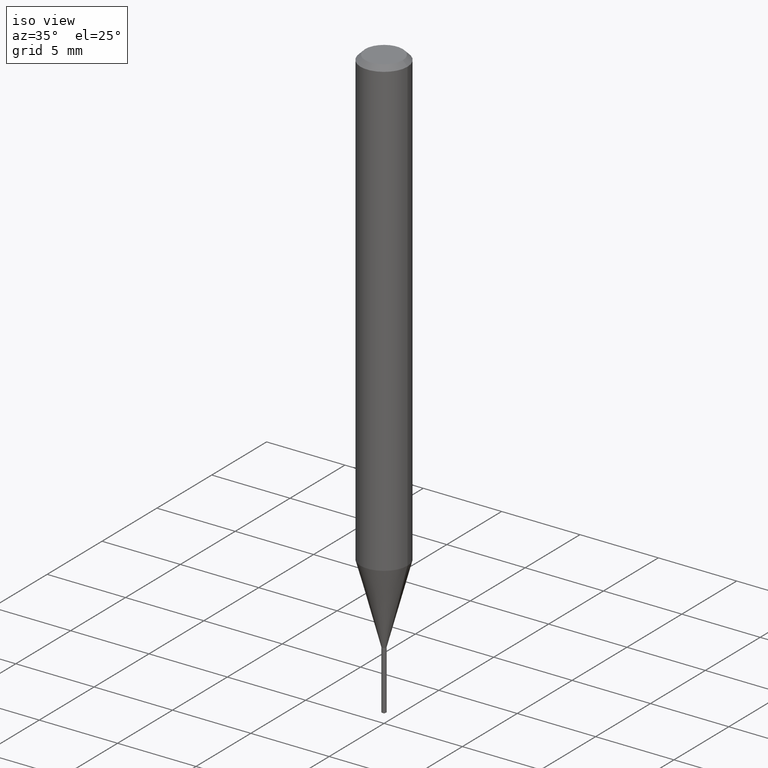
[diagram: clean part render]
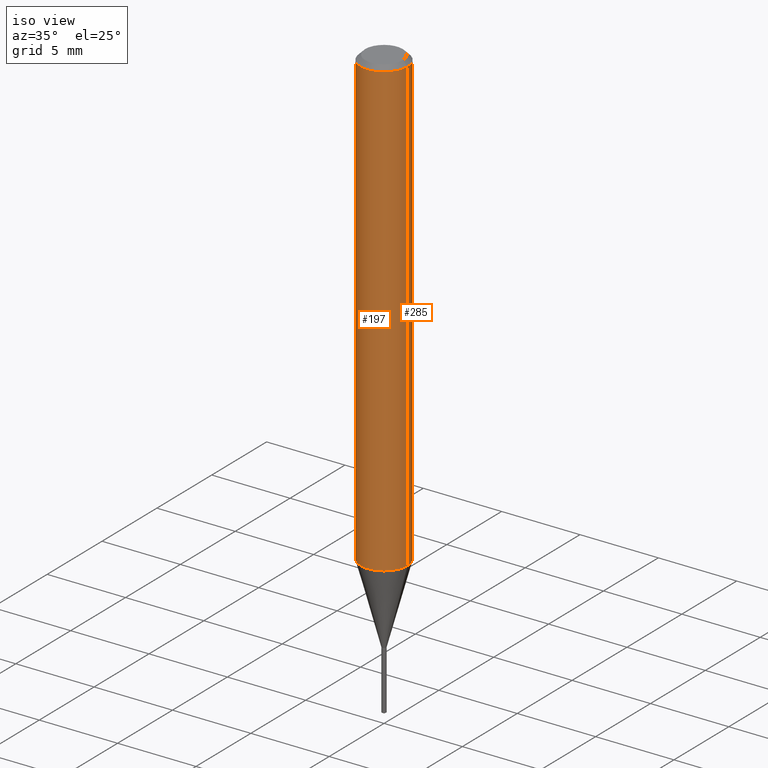
[diagram: same view with one multi-face feature highlighted, each face labeled with its STEP entity id]
A machine part, iso view. The highlighted faces form ONE feature: a constant-radius fillet chain: 2 tangent blend faces with common blend radius 1.4999 mm. The faces share edges in the B-rep.
Their STEP definitions:
[1] entity #197 (Cylinder):
#2 = EDGE_CURVE ( 'NONE', #397, #201, #355, .T. ) ;
#6 = DIRECTION ( 'NONE',  ( -2.445468806185136877E-29, 3.491481338843145188E-15, 1.000000000000000000 ) ) ;
#28 = DIRECTION ( 'NONE',  ( -2.445468806185136597E-29, 3.491481338843145583E-15, 1.000000000000000000 ) ) ;
#36 = CARTESIAN_POINT ( 'NONE',  ( 0.05904999999999999832, -4.535783407291118600E-16, -0.01181000000000006871 ) ) ;
#44 = ORIENTED_EDGE ( 'NONE', *, *, #189, .T. ) ;
#50 = LINE ( 'NONE', #257, #457 ) ;
#59 = DIRECTION ( 'NONE',  ( 1.000000000000000000, -6.982962677686266711E-15, 0.000000000000000000 ) ) ;
#111 = VERTEX_POINT ( 'NONE', #402 ) ;
#136 = CARTESIAN_POINT ( 'NONE',  ( 2.888098660104663328E-31, -4.123439461173779030E-17, -0.01181000000000006871 ) ) ;
#162 = VERTEX_POINT ( 'NONE', #264 ) ;
#189 = EDGE_CURVE ( 'NONE', #111, #162, #199, .T. ) ;
#196 = CYLINDRICAL_SURFACE ( 'NONE', #334, 0.05905000000000006771 ) ;
#197 = ADVANCED_FACE ( 'NONE', ( #303 ), #196, .T. ) ;
#199 = CIRCLE ( 'NONE', #244, 0.05905000000000014404 ) ;
#200 = LINE ( 'NONE', #470, #207 ) ;
#201 = VERTEX_POINT ( 'NONE', #36 ) ;
#207 = VECTOR ( 'NONE', #6, 39.37007874015748143 ) ;
#209 = ORIENTED_EDGE ( 'NONE', *, *, #2, .F. ) ;
#213 = AXIS2_PLACEMENT_3D ( 'NONE', #136, #28, #59 ) ;
#244 = AXIS2_PLACEMENT_3D ( 'NONE', #456, #377, #270 ) ;
#257 = CARTESIAN_POINT ( 'NONE',  ( -0.05905000000000006771, 4.195754854663396409E-16, -2.904631170795525045E-30 ) ) ;
#264 = CARTESIAN_POINT ( 'NONE',  ( 0.05905000000000014404, -4.409910893668218732E-15, -1.144948679254686352 ) ) ;
#270 = DIRECTION ( 'NONE',  ( 1.000000000000000000, -6.982962677686263555E-15, 0.000000000000000000 ) ) ;
#303 = FACE_OUTER_BOUND ( 'NONE', #352, .T. ) ;
#305 = DIRECTION ( 'NONE',  ( 1.000000000000000000, -6.982962677686266711E-15, 4.876176775795936353E-29 ) ) ;
#313 = ORIENTED_EDGE ( 'NONE', *, *, #378, .T. ) ;
#334 = AXIS2_PLACEMENT_3D ( 'NONE', #345, #420, #305 ) ;
#345 = CARTESIAN_POINT ( 'NONE',  ( 0.000000000000000000, 0.000000000000000000, 0.000000000000000000 ) ) ;
#352 = EDGE_LOOP ( 'NONE', ( #389, #44, #313, #209 ) ) ;
#355 = CIRCLE ( 'NONE', #213, 0.05904999999999999832 ) ;
#369 = DIRECTION ( 'NONE',  ( -2.445468806185136877E-29, 3.491481338843145188E-15, 1.000000000000000000 ) ) ;
#377 = DIRECTION ( 'NONE',  ( -2.445468806185136597E-29, 3.491481338843145583E-15, 1.000000000000000000 ) ) ;
#378 = EDGE_CURVE ( 'NONE', #162, #201, #200, .T. ) ;
#389 = ORIENTED_EDGE ( 'NONE', *, *, #459, .F. ) ;
#390 = CARTESIAN_POINT ( 'NONE',  ( -0.05904999999999999832, -1.599825185614950094E-15, -0.01181000000000006871 ) ) ;
#397 = VERTEX_POINT ( 'NONE', #390 ) ;
#402 = CARTESIAN_POINT ( 'NONE',  ( -0.05905000000000014404, -3.577991462084503530E-15, -1.144948679254686352 ) ) ;
#420 = DIRECTION ( 'NONE',  ( -2.445468806185136597E-29, 3.491481338843145583E-15, 1.000000000000000000 ) ) ;
#456 = CARTESIAN_POINT ( 'NONE',  ( 2.799936279800206478E-29, -3.997566947550843811E-15, -1.144948679254686352 ) ) ;
#457 = VECTOR ( 'NONE', #369, 39.37007874015748143 ) ;
#459 = EDGE_CURVE ( 'NONE', #111, #397, #50, .T. ) ;
#470 = CARTESIAN_POINT ( 'NONE',  ( 0.05905000000000006771, -4.123439461173745257E-16, 2.879382386107503723E-30 ) ) ;
[2] entity #285 (Cylinder):
#3 = CIRCLE ( 'NONE', #341, 0.05904999999999999832 ) ;
#6 = DIRECTION ( 'NONE',  ( -2.445468806185136877E-29, 3.491481338843145188E-15, 1.000000000000000000 ) ) ;
#8 = EDGE_CURVE ( 'NONE', #162, #111, #284, .T. ) ;
#31 = DIRECTION ( 'NONE',  ( -2.445468806185136597E-29, 3.491481338843145583E-15, 1.000000000000000000 ) ) ;
#36 = CARTESIAN_POINT ( 'NONE',  ( 0.05904999999999999832, -4.535783407291118600E-16, -0.01181000000000006871 ) ) ;
#38 = AXIS2_PLACEMENT_3D ( 'NONE', #361, #208, #245 ) ;
#50 = LINE ( 'NONE', #257, #457 ) ;
#111 = VERTEX_POINT ( 'NONE', #402 ) ;
#120 = CYLINDRICAL_SURFACE ( 'NONE', #38, 0.05905000000000006771 ) ;
#162 = VERTEX_POINT ( 'NONE', #264 ) ;
#169 = ORIENTED_EDGE ( 'NONE', *, *, #8, .T. ) ;
#174 = DIRECTION ( 'NONE',  ( -2.445468806185136597E-29, 3.491481338843145583E-15, 1.000000000000000000 ) ) ;
#187 = DIRECTION ( 'NONE',  ( 1.000000000000000000, -6.982962677686266711E-15, 0.000000000000000000 ) ) ;
#200 = LINE ( 'NONE', #470, #207 ) ;
#201 = VERTEX_POINT ( 'NONE', #36 ) ;
#206 = EDGE_LOOP ( 'NONE', ( #169, #287, #350, #384 ) ) ;
#207 = VECTOR ( 'NONE', #6, 39.37007874015748143 ) ;
#208 = DIRECTION ( 'NONE',  ( -2.445468806185136597E-29, 3.491481338843145583E-15, 1.000000000000000000 ) ) ;
#245 = DIRECTION ( 'NONE',  ( 1.000000000000000000, -6.982962677686266711E-15, 4.876176775795936353E-29 ) ) ;
#254 = EDGE_CURVE ( 'NONE', #201, #397, #3, .T. ) ;
#257 = CARTESIAN_POINT ( 'NONE',  ( -0.05905000000000006771, 4.195754854663396409E-16, -2.904631170795525045E-30 ) ) ;
#260 = AXIS2_PLACEMENT_3D ( 'NONE', #404, #174, #476 ) ;
#264 = CARTESIAN_POINT ( 'NONE',  ( 0.05905000000000014404, -4.409910893668218732E-15, -1.144948679254686352 ) ) ;
#271 = FACE_OUTER_BOUND ( 'NONE', #206, .T. ) ;
#284 = CIRCLE ( 'NONE', #260, 0.05905000000000014404 ) ;
#285 = ADVANCED_FACE ( 'NONE', ( #271 ), #120, .T. ) ;
#287 = ORIENTED_EDGE ( 'NONE', *, *, #459, .T. ) ;
#341 = AXIS2_PLACEMENT_3D ( 'NONE', #376, #31, #187 ) ;
#350 = ORIENTED_EDGE ( 'NONE', *, *, #254, .F. ) ;
#361 = CARTESIAN_POINT ( 'NONE',  ( 0.000000000000000000, 0.000000000000000000, 0.000000000000000000 ) ) ;
#369 = DIRECTION ( 'NONE',  ( -2.445468806185136877E-29, 3.491481338843145188E-15, 1.000000000000000000 ) ) ;
#376 = CARTESIAN_POINT ( 'NONE',  ( 2.888098660104663328E-31, -4.123439461173779030E-17, -0.01181000000000006871 ) ) ;
#378 = EDGE_CURVE ( 'NONE', #162, #201, #200, .T. ) ;
#384 = ORIENTED_EDGE ( 'NONE', *, *, #378, .F. ) ;
#390 = CARTESIAN_POINT ( 'NONE',  ( -0.05904999999999999832, -1.599825185614950094E-15, -0.01181000000000006871 ) ) ;
#397 = VERTEX_POINT ( 'NONE', #390 ) ;
#402 = CARTESIAN_POINT ( 'NONE',  ( -0.05905000000000014404, -3.577991462084503530E-15, -1.144948679254686352 ) ) ;
#404 = CARTESIAN_POINT ( 'NONE',  ( 2.799936279800206478E-29, -3.997566947550843811E-15, -1.144948679254686352 ) ) ;
#457 = VECTOR ( 'NONE', #369, 39.37007874015748143 ) ;
#459 = EDGE_CURVE ( 'NONE', #111, #397, #50, .T. ) ;
#470 = CARTESIAN_POINT ( 'NONE',  ( 0.05905000000000006771, -4.123439461173745257E-16, 2.879382386107503723E-30 ) ) ;
#476 = DIRECTION ( 'NONE',  ( 1.000000000000000000, -6.982962677686263555E-15, 0.000000000000000000 ) ) ;